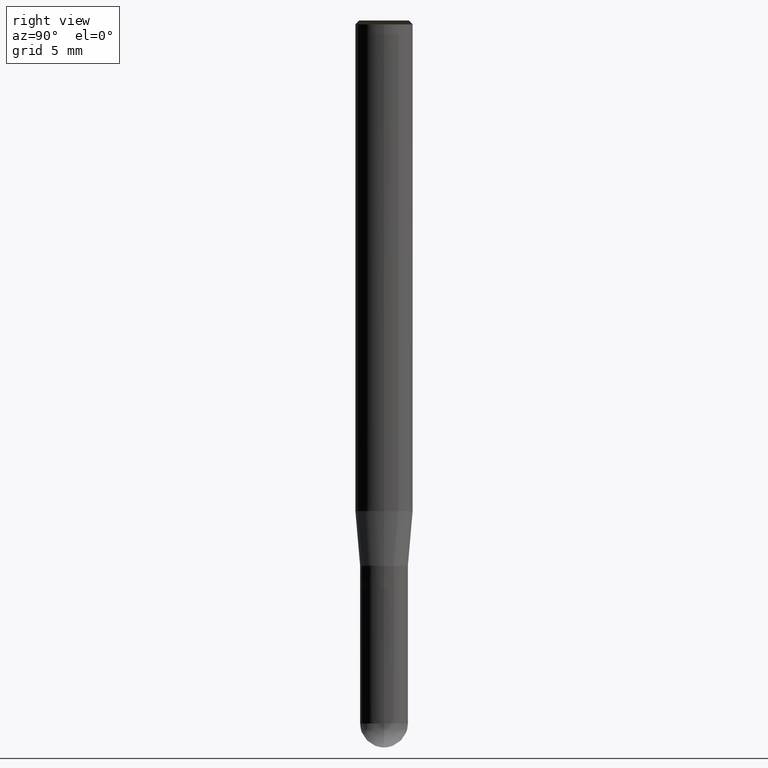
[diagram: clean part render]
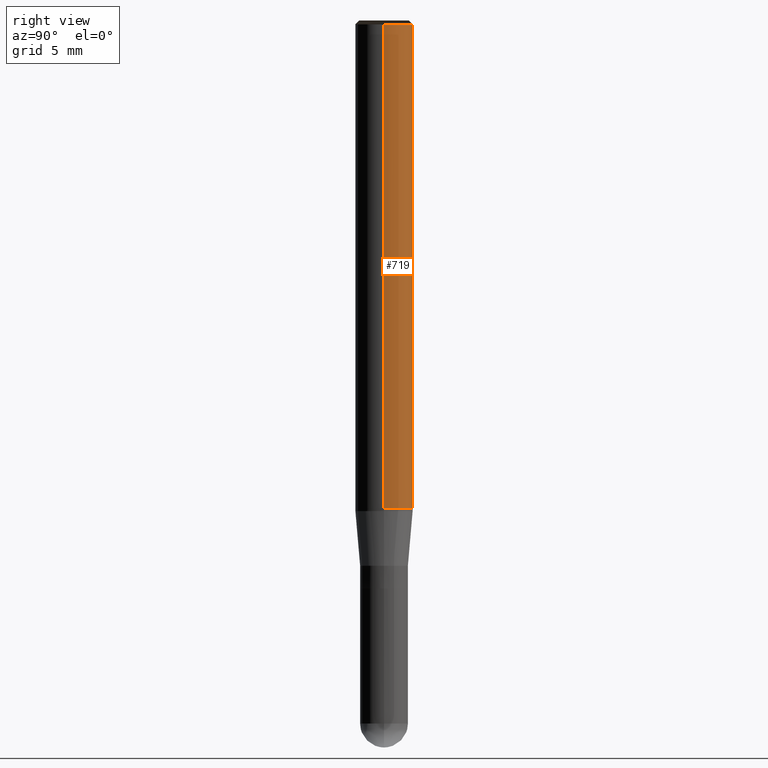
[diagram: same view with one face highlighted and labeled with its STEP entity id]
A machine part, right view. The second image highlights one B-rep face of the part: STEP entity #719.
In plain terms, the highlighted face is a freeform B-spline surface patch.
Its self-contained STEP definition (entity closure, byte-faithful):
#480=CARTESIAN_POINT('',(1.5,0.0,0.0));
#481=CARTESIAN_POINT('',(1.5,1.5,0.0));
#482=CARTESIAN_POINT('',(0.0,1.5,0.0));
#483=CARTESIAN_POINT('',(-1.5,1.5,0.0));
#484=CARTESIAN_POINT('',(-1.5,0.0,0.0));
#485=CARTESIAN_POINT('',(1.5,0.0,25.3));
#486=CARTESIAN_POINT('',(1.5,1.5,25.3));
#487=CARTESIAN_POINT('',(0.0,1.5,25.3));
#488=CARTESIAN_POINT('',(-1.5,1.5,25.3));
#489=CARTESIAN_POINT('',(-1.5,0.0,25.3));
#700=(
BOUNDED_SURFACE()
B_SPLINE_SURFACE(1,2,(
(#480,#481,#482,#483,#484),
(#485,#486,#487,#488,#489)
), .UNSPECIFIED.,.F.,.F.,.F.)
B_SPLINE_SURFACE_WITH_KNOTS((2,2),(3,2,3),(
0.0,1.0),(
0.0,0.5,1.0), .UNSPECIFIED.)
GEOMETRIC_REPRESENTATION_ITEM()
RATIONAL_B_SPLINE_SURFACE(((1.0,0.707106781187,1.0,0.707106781187,1.0),
(1.0,0.707106781187,1.0,0.707106781187,1.0)
))
REPRESENTATION_ITEM('')
SURFACE()
);
#701=(
BOUNDED_CURVE()
B_SPLINE_CURVE(2,(#484,#483,#482,#481,#480),.UNSPECIFIED.,.F.,.F.)
B_SPLINE_CURVE_WITH_KNOTS((3,2,3),
(0.0,0.5,1.0),.UNSPECIFIED.)
CURVE()
GEOMETRIC_REPRESENTATION_ITEM()
RATIONAL_B_SPLINE_CURVE((1.0,0.707106781187,1.0,0.707106781187,1.0))
REPRESENTATION_ITEM('')
);
#702=(
BOUNDED_CURVE()
B_SPLINE_CURVE(1,(#480,#485),.UNSPECIFIED.,.F.,.F.)
B_SPLINE_CURVE_WITH_KNOTS((2,2),
(0.0,1.0),.UNSPECIFIED.)
CURVE()
GEOMETRIC_REPRESENTATION_ITEM()
RATIONAL_B_SPLINE_CURVE((1.0,1.0))
REPRESENTATION_ITEM('')
);
#703=(
BOUNDED_CURVE()
B_SPLINE_CURVE(2,(#485,#486,#487,#488,#489),.UNSPECIFIED.,.F.,.F.)
B_SPLINE_CURVE_WITH_KNOTS((3,2,3),
(0.0,0.5,1.0),.UNSPECIFIED.)
CURVE()
GEOMETRIC_REPRESENTATION_ITEM()
RATIONAL_B_SPLINE_CURVE((1.0,0.707106781187,1.0,0.707106781187,1.0))
REPRESENTATION_ITEM('')
);
#704=(
BOUNDED_CURVE()
B_SPLINE_CURVE(1,(#489,#484),.UNSPECIFIED.,.F.,.F.)
B_SPLINE_CURVE_WITH_KNOTS((2,2),
(0.0,1.0),.UNSPECIFIED.)
CURVE()
GEOMETRIC_REPRESENTATION_ITEM()
RATIONAL_B_SPLINE_CURVE((1.0,1.0))
REPRESENTATION_ITEM('')
);
#705=VERTEX_POINT('',#480);
#706=VERTEX_POINT('',#484);
#707=VERTEX_POINT('',#485);
#708=VERTEX_POINT('',#489);
#709=EDGE_CURVE('',#706,#705,#701,.T.);
#710=EDGE_CURVE('',#705,#707,#702,.T.);
#711=EDGE_CURVE('',#707,#708,#703,.T.);
#712=EDGE_CURVE('',#708,#706,#704,.T.);
#713=ORIENTED_EDGE('',*,*,#709,.T.);
#714=ORIENTED_EDGE('',*,*,#710,.T.);
#715=ORIENTED_EDGE('',*,*,#711,.T.);
#716=ORIENTED_EDGE('',*,*,#712,.T.);
#717=EDGE_LOOP('',(#713,#714,#715,#716));
#718=FACE_OUTER_BOUND('',#717,.T.);
#719=ADVANCED_FACE('',(#718),#700,.T.);